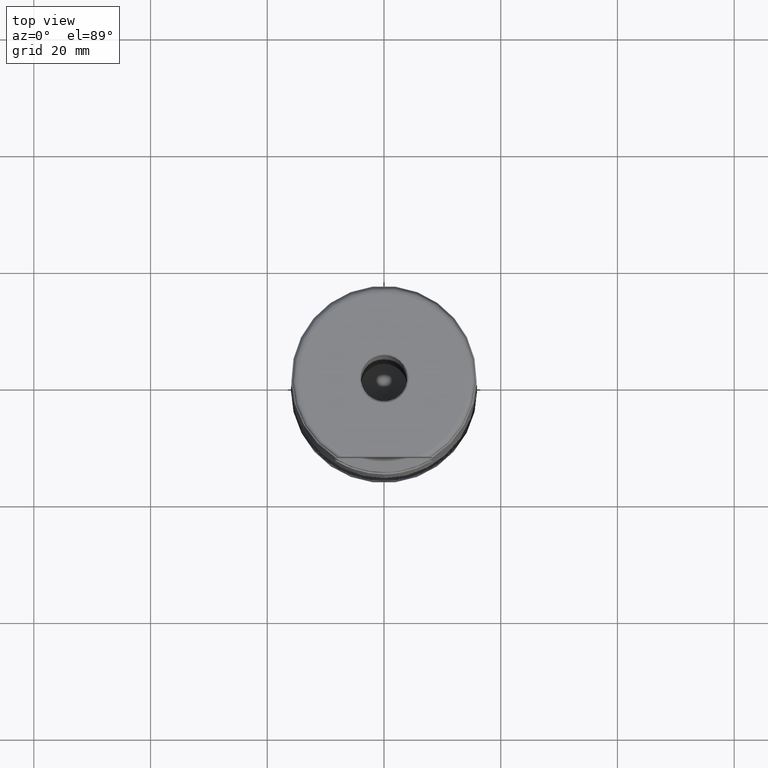
[diagram: clean part render]
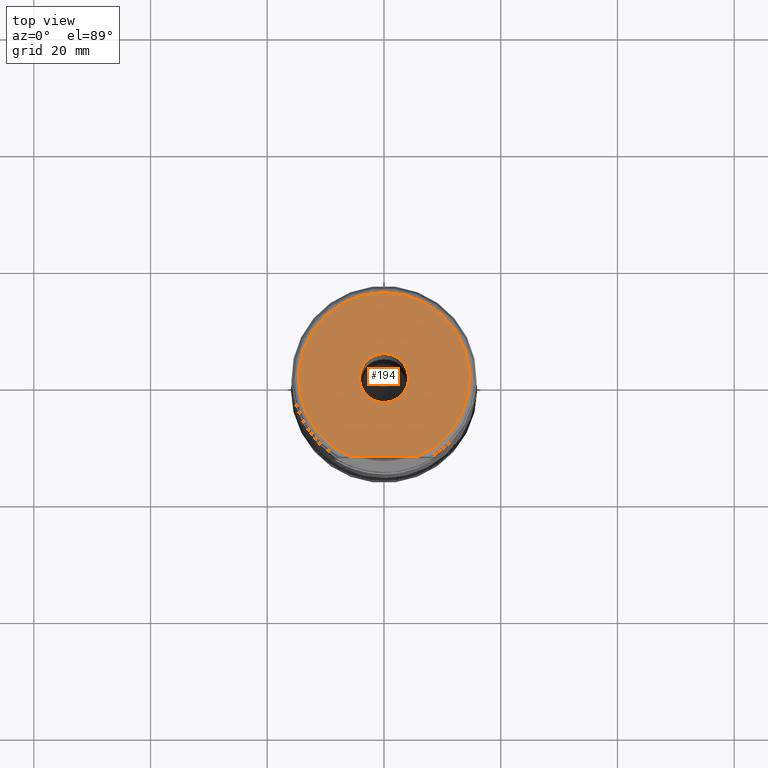
[diagram: same view with one face highlighted and labeled with its STEP entity id]
A machine part, top view. The second image highlights one B-rep face of the part: STEP entity #194.
In plain terms, the highlighted planar face has unit normal (0, 0, 1).
Its self-contained STEP definition (entity closure, byte-faithful):
#173=PLANE('',#856);
#194=ADVANCED_FACE('',(#302,#303),#173,.T.);
#258=CIRCLE('',#854,4.2);
#259=CIRCLE('',#855,14.675);
#302=FACE_BOUND('',#390,.T.);
#303=FACE_BOUND('',#391,.T.);
#390=EDGE_LOOP('',(#530));
#391=EDGE_LOOP('',(#531,#532));
#488=LINE('',#1466,#501);
#501=VECTOR('',#954,1.);
#530=ORIENTED_EDGE('',*,*,#735,.T.);
#531=ORIENTED_EDGE('',*,*,#736,.T.);
#532=ORIENTED_EDGE('',*,*,#737,.T.);
#672=VERTEX_POINT('',#1462);
#673=VERTEX_POINT('',#1464);
#674=VERTEX_POINT('',#1465);
#735=EDGE_CURVE('',#672,#672,#258,.T.);
#736=EDGE_CURVE('',#673,#674,#259,.T.);
#737=EDGE_CURVE('',#674,#673,#488,.T.);
#854=AXIS2_PLACEMENT_3D('',#1461,#950,#951);
#855=AXIS2_PLACEMENT_3D('',#1463,#952,#953);
#856=AXIS2_PLACEMENT_3D('',#1467,#955,#956);
#950=DIRECTION('',(0.,-1.17145536458252E-15,-1.));
#951=DIRECTION('',(0.,-1.,0.));
#952=DIRECTION('',(0.,1.17145536458252E-15,1.));
#953=DIRECTION('',(0.,-1.,9.45675489459248E-16));
#954=DIRECTION('',(1.,-7.17309531289991E-32,-6.12323399573676E-17));
#955=DIRECTION('',(0.,1.17145536458252E-15,1.));
#956=DIRECTION('',(0.,-1.,1.16573417585641E-15));
#1461=CARTESIAN_POINT('',(0.,1.33897348171783E-13,114.3));
#1462=CARTESIAN_POINT('',(0.,-4.19999999999987,114.3));
#1463=CARTESIAN_POINT('',(0.,1.33897348171783E-13,114.3));
#1464=CARTESIAN_POINT('',(5.78322282468844,-13.4873999999999,114.3));
#1465=CARTESIAN_POINT('',(-5.78322282468866,-13.4873999999999,114.3));
#1466=CARTESIAN_POINT('',(-17.5,-13.4873999999999,114.3));
#1467=CARTESIAN_POINT('',(0.,1.33897348171783E-13,114.3));